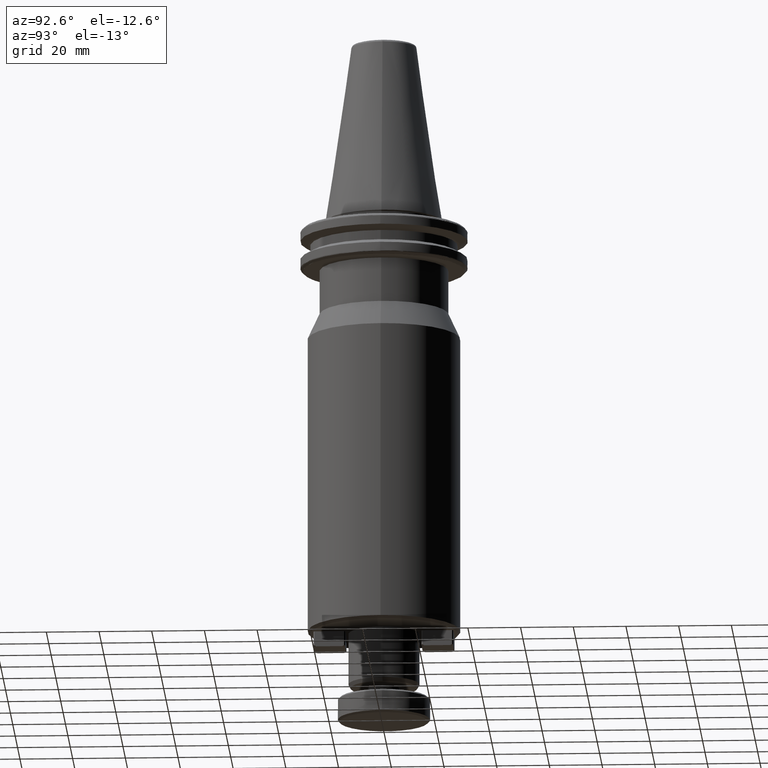
[diagram: clean part render]
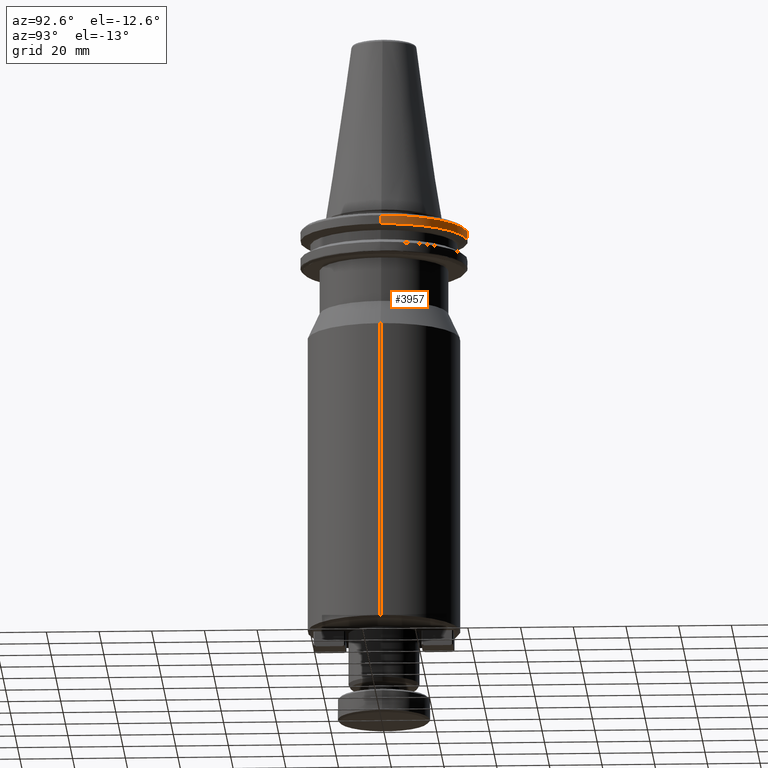
[diagram: same view with one face highlighted and labeled with its STEP entity id]
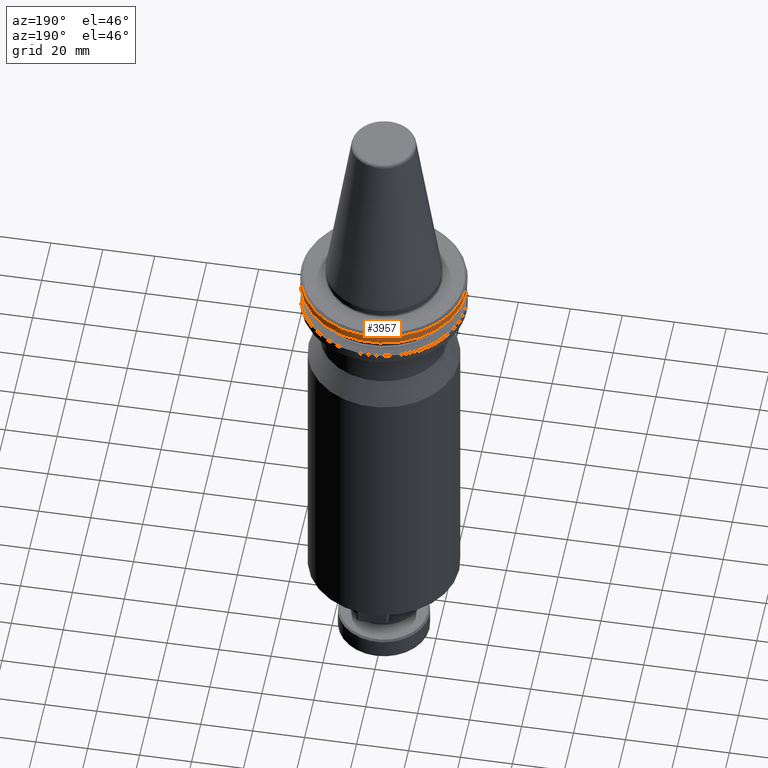
[diagram: same view with one face highlighted and labeled with its STEP entity id]
A machine part, auxiliary view. The second image highlights one B-rep face of the part: STEP entity #3957.
A second angle (auxiliary view) of the same face is appended — the face is thin or edge-on in the first view.
In plain terms, the highlighted cylindrical surface (partial cylindrical patch) has radius 31.75 mm, axis along (0, 0, 1).
Its self-contained STEP definition (entity closure, byte-faithful):
#31 = LINE ( 'NONE', #2018, #1655 ) ;
#225 = VERTEX_POINT ( 'NONE', #3155 ) ;
#366 = EDGE_CURVE ( 'NONE', #225, #3105, #31, .T. ) ;
#392 = CIRCLE ( 'NONE', #1149, 31.75000000000000000 ) ;
#407 = VERTEX_POINT ( 'NONE', #2170 ) ;
#423 = DIRECTION ( 'NONE',  ( 0.0000000000000000000, 0.0000000000000000000, 1.000000000000000000 ) ) ;
#538 = CARTESIAN_POINT ( 'NONE',  ( -25.80334280669851700, 18.50000000000000000, -4.365685424949320200 ) ) ;
#575 = DIRECTION ( 'NONE',  ( 1.000000000000000000, 0.0000000000000000000, 0.0000000000000000000 ) ) ;
#581 = DIRECTION ( 'NONE',  ( -0.0000000000000000000, -0.0000000000000000000, 1.000000000000000000 ) ) ;
#587 = CARTESIAN_POINT ( 'NONE',  ( 0.0000000000000000000, 0.0000000000000000000, -4.365685424949320200 ) ) ;
#591 = AXIS2_PLACEMENT_3D ( 'NONE', #703, #2748, #1020 ) ;
#626 = VERTEX_POINT ( 'NONE', #1509 ) ;
#673 = EDGE_LOOP ( 'NONE', ( #1993, #2518, #1791, #4137, #2901, #3160, #1241, #2636 ) ) ;
#703 = CARTESIAN_POINT ( 'NONE',  ( 0.0000000000000000000, 0.0000000000000000000, 113.5216080541959500 ) ) ;
#745 = EDGE_CURVE ( 'NONE', #225, #626, #2833, .T. ) ;
#764 = CARTESIAN_POINT ( 'NONE',  ( 0.0000000000000000000, 0.0000000000000000000, -4.365685424949320200 ) ) ;
#826 = VERTEX_POINT ( 'NONE', #1178 ) ;
#1020 = DIRECTION ( 'NONE',  ( 1.000000000000000000, 0.0000000000000000000, 0.0000000000000000000 ) ) ;
#1068 = CIRCLE ( 'NONE', #3532, 31.75000000000000000 ) ;
#1102 = DIRECTION ( 'NONE',  ( 1.000000000000000000, 0.0000000000000000000, 0.0000000000000000000 ) ) ;
#1111 = DIRECTION ( 'NONE',  ( -0.0000000000000000000, -0.0000000000000000000, -1.000000000000000000 ) ) ;
#1117 = EDGE_CURVE ( 'NONE', #407, #3105, #1567, .T. ) ;
#1149 = AXIS2_PLACEMENT_3D ( 'NONE', #764, #3133, #1102 ) ;
#1178 = CARTESIAN_POINT ( 'NONE',  ( 31.75000000000000000, 0.0000000000000000000, -4.365685424949320200 ) ) ;
#1188 = CARTESIAN_POINT ( 'NONE',  ( 30.56296919415017000, 8.600431037885700300, -4.365685424949320200 ) ) ;
#1224 = CARTESIAN_POINT ( 'NONE',  ( -18.49999999999999600, 25.80334280669851700, -4.365685424949320200 ) ) ;
#1241 = ORIENTED_EDGE ( 'NONE', *, *, #2864, .F. ) ;
#1275 = CARTESIAN_POINT ( 'NONE',  ( -31.75000000000000000, 3.888253587292846500E-015, -4.365685424949320200 ) ) ;
#1306 = DIRECTION ( 'NONE',  ( 1.000000000000000000, 0.0000000000000000000, -5.463695987328526400E-017 ) ) ;
#1313 = DIRECTION ( 'NONE',  ( -0.0000000000000000000, -0.0000000000000000000, -1.000000000000000000 ) ) ;
#1318 = CARTESIAN_POINT ( 'NONE',  ( 0.0000000000000000000, 0.0000000000000000000, -7.578163357943284800 ) ) ;
#1493 = AXIS2_PLACEMENT_3D ( 'NONE', #2661, #1653, #1642 ) ;
#1509 = CARTESIAN_POINT ( 'NONE',  ( 31.75000000000000000, 0.0000000000000000000, -7.578163357943286500 ) ) ;
#1522 = VERTEX_POINT ( 'NONE', #1224 ) ;
#1567 = CIRCLE ( 'NONE', #2438, 31.75000000000000000 ) ;
#1642 = DIRECTION ( 'NONE',  ( 1.000000000000000000, -1.776356839400250500E-015, 0.0000000000000000000 ) ) ;
#1653 = DIRECTION ( 'NONE',  ( -0.0000000000000000000, -0.0000000000000000000, -1.000000000000000000 ) ) ;
#1655 = VECTOR ( 'NONE', #2441, 1000.000000000000000 ) ;
#1789 = EDGE_CURVE ( 'NONE', #1522, #2111, #3988, .T. ) ;
#1791 = ORIENTED_EDGE ( 'NONE', *, *, #1117, .F. ) ;
#1993 = ORIENTED_EDGE ( 'NONE', *, *, #745, .F. ) ;
#2008 = CARTESIAN_POINT ( 'NONE',  ( 0.0000000000000000000, 0.0000000000000000000, -4.365685424949320200 ) ) ;
#2018 = CARTESIAN_POINT ( 'NONE',  ( -31.75000000000000000, 3.888253587292846500E-015, 113.5216080541959500 ) ) ;
#2056 = AXIS2_PLACEMENT_3D ( 'NONE', #1318, #1313, #1306 ) ;
#2111 = VERTEX_POINT ( 'NONE', #1188 ) ;
#2170 = CARTESIAN_POINT ( 'NONE',  ( -30.52966748735166600, 8.717907037342316200, -4.365685424949320200 ) ) ;
#2273 = AXIS2_PLACEMENT_3D ( 'NONE', #2008, #4218, #2355 ) ;
#2355 = DIRECTION ( 'NONE',  ( 1.000000000000000000, 0.0000000000000000000, 0.0000000000000000000 ) ) ;
#2438 = AXIS2_PLACEMENT_3D ( 'NONE', #587, #581, #575 ) ;
#2441 = DIRECTION ( 'NONE',  ( 0.0000000000000000000, 0.0000000000000000000, 1.000000000000000000 ) ) ;
#2518 = ORIENTED_EDGE ( 'NONE', *, *, #366, .T. ) ;
#2636 = ORIENTED_EDGE ( 'NONE', *, *, #2698, .F. ) ;
#2661 = CARTESIAN_POINT ( 'NONE',  ( 0.0000000000000000000, 0.0000000000000000000, -4.365685424949320200 ) ) ;
#2698 = EDGE_CURVE ( 'NONE', #626, #826, #3509, .T. ) ;
#2748 = DIRECTION ( 'NONE',  ( 0.0000000000000000000, 0.0000000000000000000, 1.000000000000000000 ) ) ;
#2833 = CIRCLE ( 'NONE', #2056, 31.75000000000000000 ) ;
#2864 = EDGE_CURVE ( 'NONE', #826, #2111, #392, .T. ) ;
#2901 = ORIENTED_EDGE ( 'NONE', *, *, #3810, .F. ) ;
#3105 = VERTEX_POINT ( 'NONE', #1275 ) ;
#3133 = DIRECTION ( 'NONE',  ( -0.0000000000000000000, -0.0000000000000000000, 1.000000000000000000 ) ) ;
#3141 = CARTESIAN_POINT ( 'NONE',  ( 0.0000000000000000000, 0.0000000000000000000, -4.365685424949236700 ) ) ;
#3155 = CARTESIAN_POINT ( 'NONE',  ( -31.75000000000000000, 3.888253587292846500E-015, -7.578163357943284800 ) ) ;
#3160 = ORIENTED_EDGE ( 'NONE', *, *, #1789, .T. ) ;
#3340 = CARTESIAN_POINT ( 'NONE',  ( 31.75000000000000000, 0.0000000000000000000, 113.5216080541959500 ) ) ;
#3400 = CIRCLE ( 'NONE', #2273, 31.75000000000000000 ) ;
#3410 = VECTOR ( 'NONE', #423, 1000.000000000000000 ) ;
#3478 = DIRECTION ( 'NONE',  ( 1.000000000000000000, 0.0000000000000000000, 0.0000000000000000000 ) ) ;
#3507 = VERTEX_POINT ( 'NONE', #538 ) ;
#3509 = LINE ( 'NONE', #3340, #3410 ) ;
#3532 = AXIS2_PLACEMENT_3D ( 'NONE', #3141, #1111, #3478 ) ;
#3810 = EDGE_CURVE ( 'NONE', #1522, #3507, #3400, .T. ) ;
#3925 = CYLINDRICAL_SURFACE ( 'NONE', #591, 31.75000000000000000 ) ;
#3957 = ADVANCED_FACE ( 'NONE', ( #4169 ), #3925, .T. ) ;
#3988 = CIRCLE ( 'NONE', #1493, 31.75000000000000000 ) ;
#4037 = EDGE_CURVE ( 'NONE', #407, #3507, #1068, .T. ) ;
#4137 = ORIENTED_EDGE ( 'NONE', *, *, #4037, .T. ) ;
#4169 = FACE_OUTER_BOUND ( 'NONE', #673, .T. ) ;
#4218 = DIRECTION ( 'NONE',  ( -0.0000000000000000000, -0.0000000000000000000, 1.000000000000000000 ) ) ;